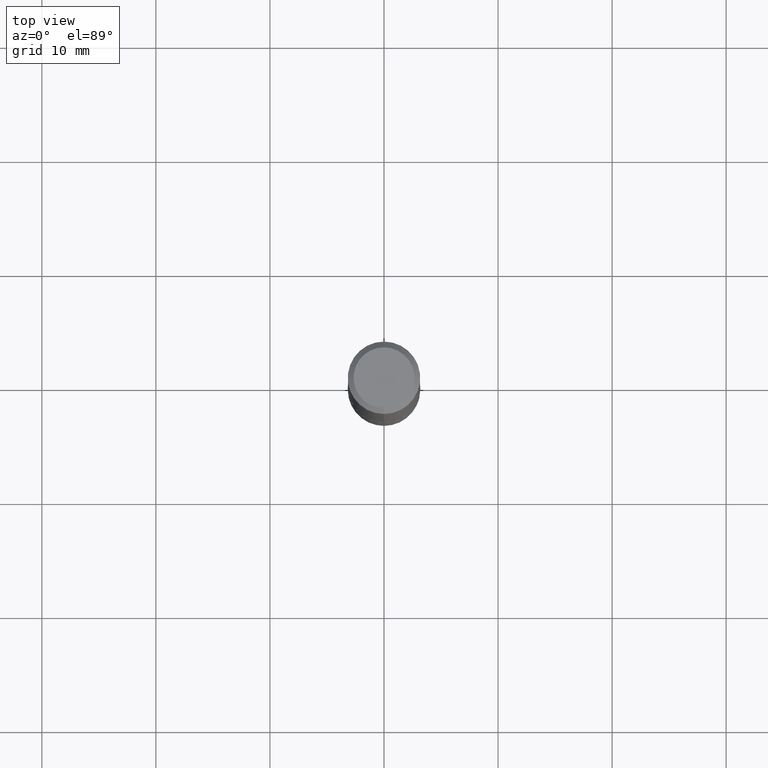
[diagram: clean part render]
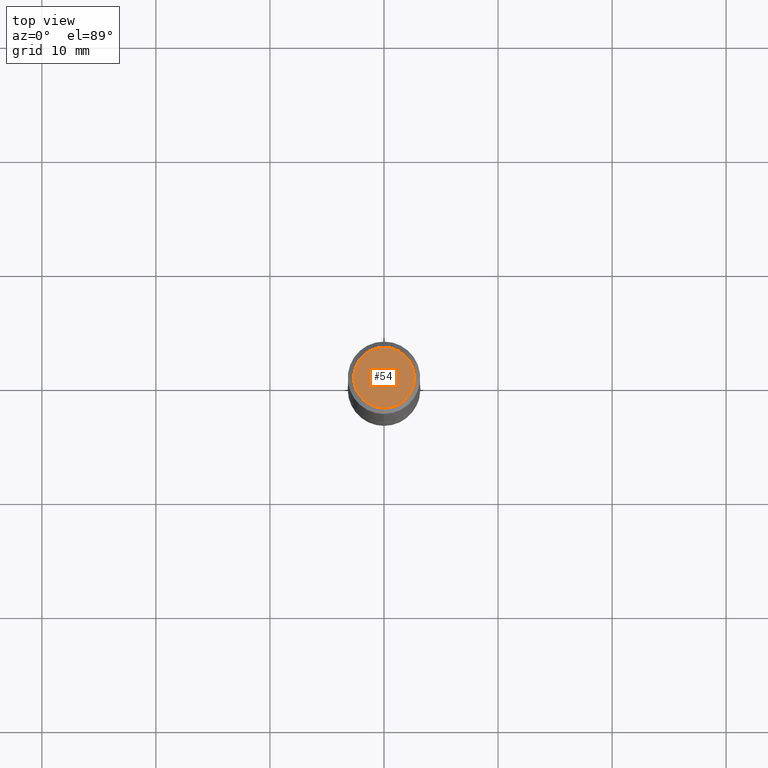
[diagram: same view with one face highlighted and labeled with its STEP entity id]
A machine part, top view. The second image highlights one B-rep face of the part: STEP entity #54.
In plain terms, the highlighted planar face has unit normal (0, -0, -1).
Its self-contained STEP definition (entity closure, byte-faithful):
#32 = DIRECTION ( 'NONE',  ( -6.982962677686265133E-15, -1.000000000000000000, 3.491141472859907037E-15 ) ) ;
#37 = DIRECTION ( 'NONE',  ( 2.445706133332773460E-29, -3.491141472859906642E-15, -1.000000000000000000 ) ) ;
#45 = AXIS2_PLACEMENT_3D ( 'NONE', #125, #37, #97 ) ;
#54 = ADVANCED_FACE ( 'NONE', ( #68 ), #133, .F. ) ;
#68 = FACE_OUTER_BOUND ( 'NONE', #393, .T. ) ;
#88 = EDGE_CURVE ( 'NONE', #223, #220, #132, .T. ) ;
#97 = DIRECTION ( 'NONE',  ( 6.982962677686265922E-15, 1.000000000000000000, -3.491141472859906642E-15 ) ) ;
#103 = AXIS2_PLACEMENT_3D ( 'NONE', #266, #156, #32 ) ;
#107 = EDGE_CURVE ( 'NONE', #220, #223, #213, .T. ) ;
#112 = CARTESIAN_POINT ( 'NONE',  ( -7.889572697437259167E-16, -0.1050000000000000239, 3.537286312517489352E-16 ) ) ;
#125 = CARTESIAN_POINT ( 'NONE',  ( 7.332110811570580243E-16, 0.1050000000000000239, -3.729904663495609390E-16 ) ) ;
#132 = CIRCLE ( 'NONE', #155, 0.1050000000000000239 ) ;
#133 = PLANE ( 'NONE',  #45 ) ;
#155 = AXIS2_PLACEMENT_3D ( 'NONE', #293, #323, #325 ) ;
#156 = DIRECTION ( 'NONE',  ( -2.445706133332774021E-29, 3.491141472859906642E-15, 1.000000000000000000 ) ) ;
#213 = CIRCLE ( 'NONE', #103, 0.1050000000000000239 ) ;
#220 = VERTEX_POINT ( 'NONE', #112 ) ;
#223 = VERTEX_POINT ( 'NONE', #362 ) ;
#266 = CARTESIAN_POINT ( 'NONE',  ( 3.140585882530887527E-46, -4.483052756890670223E-32, -1.284122339854133797E-17 ) ) ;
#293 = CARTESIAN_POINT ( 'NONE',  ( 3.140585882530887527E-46, -4.483052756890670223E-32, -1.284122339854133797E-17 ) ) ;
#312 = ORIENTED_EDGE ( 'NONE', *, *, #107, .T. ) ;
#323 = DIRECTION ( 'NONE',  ( -2.445706133332774021E-29, 3.491141472859906642E-15, 1.000000000000000000 ) ) ;
#325 = DIRECTION ( 'NONE',  ( -6.982962677686265133E-15, -1.000000000000000000, 3.491141472859907037E-15 ) ) ;
#362 = CARTESIAN_POINT ( 'NONE',  ( 8.030407079339208295E-16, 0.1050000000000000239, -3.794110780488316234E-16 ) ) ;
#393 = EDGE_LOOP ( 'NONE', ( #405, #312 ) ) ;
#405 = ORIENTED_EDGE ( 'NONE', *, *, #88, .T. ) ;